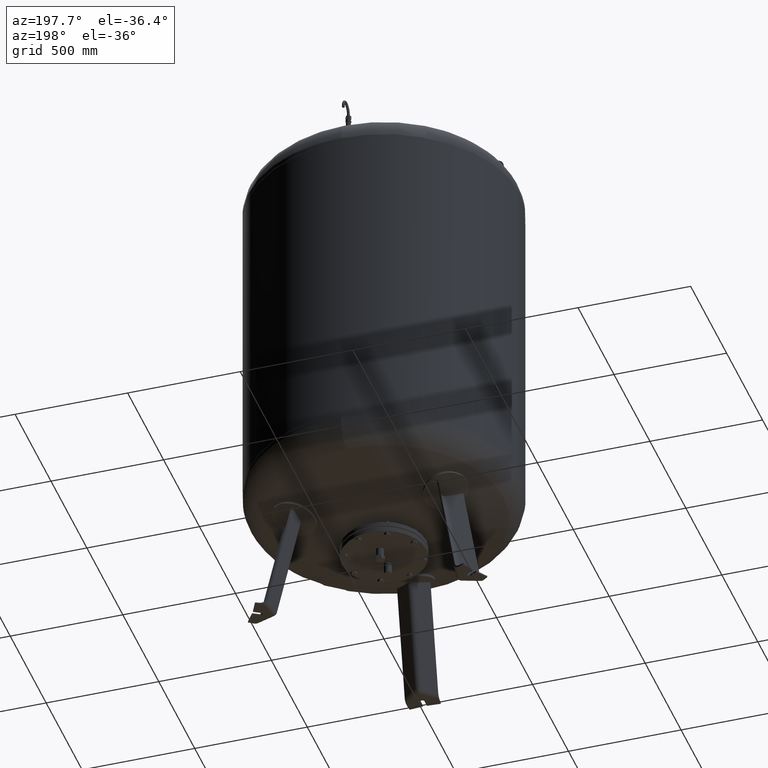
[diagram: clean part render]
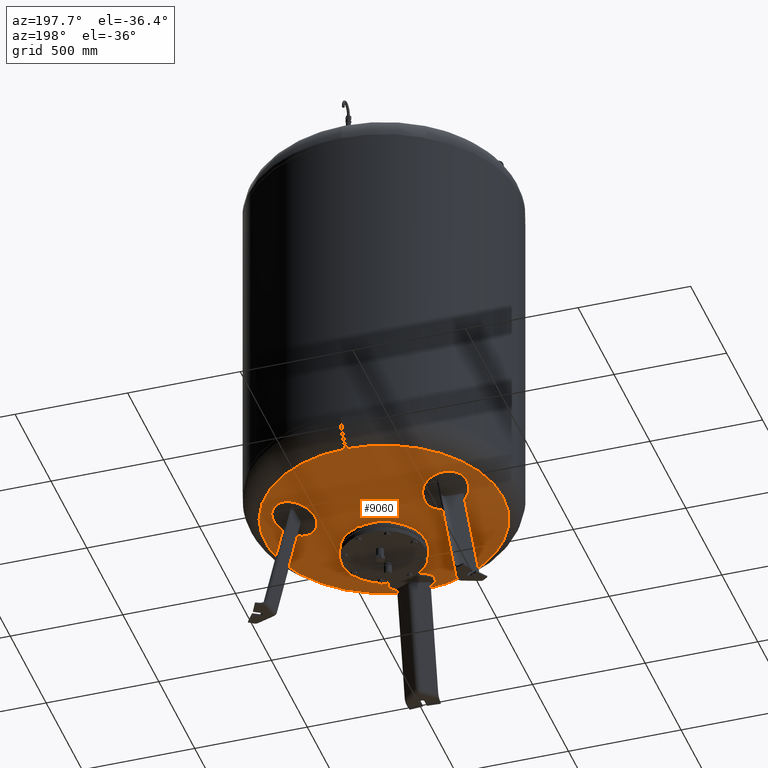
[diagram: same view with one face highlighted and labeled with its STEP entity id]
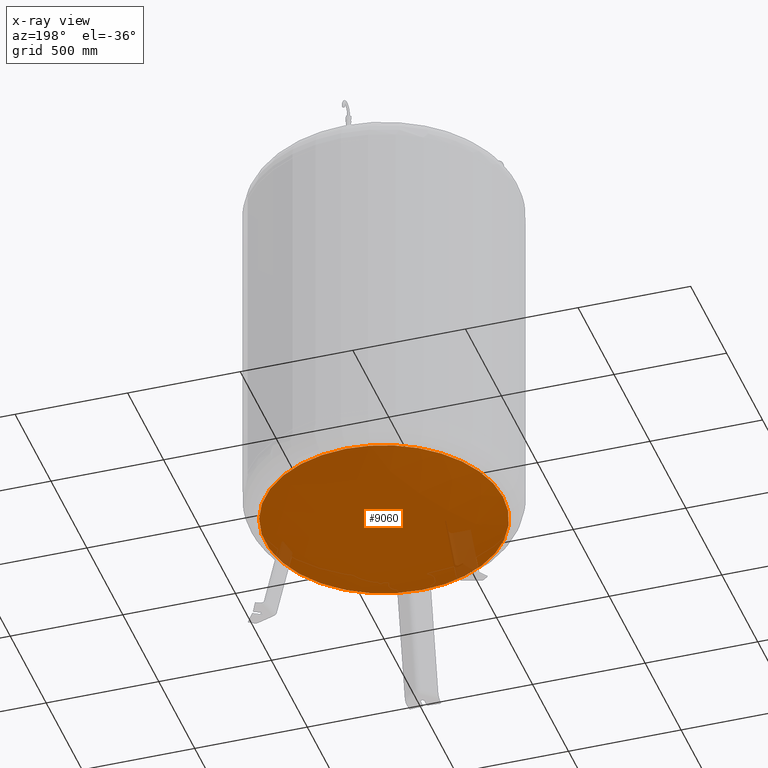
[diagram: x-ray of the same camera — body ghosted, the highlighted face saturated]
A machine part, auxiliary view. The second image highlights one B-rep face of the part: STEP entity #9060.
The next image is the same camera in x-ray: the body ghosted, the highlighted face saturated — about 4% of this face is hidden behind the body in this view.
In plain terms, the highlighted spherical surface has radius 1207 mm.
Its self-contained STEP definition (entity closure, byte-faithful):
#8999=CARTESIAN_POINT('',(-5.387807E-014,-528.621296296296240,581.915429516194880));
#9000=VERTEX_POINT('',#8999);
#9016=CARTESIAN_POINT('',(-1.186134E-013,528.621296296296240,581.915429516195100));
#9017=VERTEX_POINT('',#9016);
#9025=CARTESIAN_POINT('',(-528.621296296296240,-2.239550E-014,581.915429516194990));
#9026=VERTEX_POINT('',#9025);
#9027=CARTESIAN_POINT('',(-1.834112E-014,-2.239550E-014,581.915429516194990));
#9028=DIRECTION('',(0.0,0.0,1.0));
#9029=DIRECTION('',(-1.0,0.0,0.0));
#9030=AXIS2_PLACEMENT_3D('',#9027,#9028,#9029);
#9031=CIRCLE('',#9030,528.621296296296240);
#9032=EDGE_CURVE('',#9017,#9026,#9031,.T.);
#9034=CARTESIAN_POINT('',(-1.834112E-014,-2.239550E-014,581.915429516194990));
#9035=DIRECTION('',(0.0,0.0,1.0));
#9036=DIRECTION('',(-1.0,0.0,0.0));
#9037=AXIS2_PLACEMENT_3D('',#9034,#9035,#9036);
#9038=CIRCLE('',#9037,528.621296296296240);
#9039=EDGE_CURVE('',#9026,#9000,#9038,.T.);
#9044=CARTESIAN_POINT('',(-2.715353E-013,-2.217223E-013,1667.0));
#9045=DIRECTION('',(0.0,-1.0,0.0));
#9046=DIRECTION('',(1.0,0.0,0.0));
#9047=AXIS2_PLACEMENT_3D('',#9044,#9045,#9046);
#9048=SPHERICAL_SURFACE('',#9047,1207.000000000000200);
#9049=ORIENTED_EDGE('',*,*,#9039,.F.);
#9050=ORIENTED_EDGE('',*,*,#9032,.F.);
#9051=CARTESIAN_POINT('',(-1.834112E-014,-2.239550E-014,581.915429516194990));
#9052=DIRECTION('',(0.0,0.0,1.0));
#9053=DIRECTION('',(-1.0,0.0,0.0));
#9054=AXIS2_PLACEMENT_3D('',#9051,#9052,#9053);
#9055=CIRCLE('',#9054,528.621296296296240);
#9056=EDGE_CURVE('',#9000,#9017,#9055,.T.);
#9057=ORIENTED_EDGE('',*,*,#9056,.F.);
#9058=EDGE_LOOP('',(#9049,#9050,#9057));
#9059=FACE_OUTER_BOUND('',#9058,.T.);
#9060=ADVANCED_FACE('',(#9059),#9048,.T.);